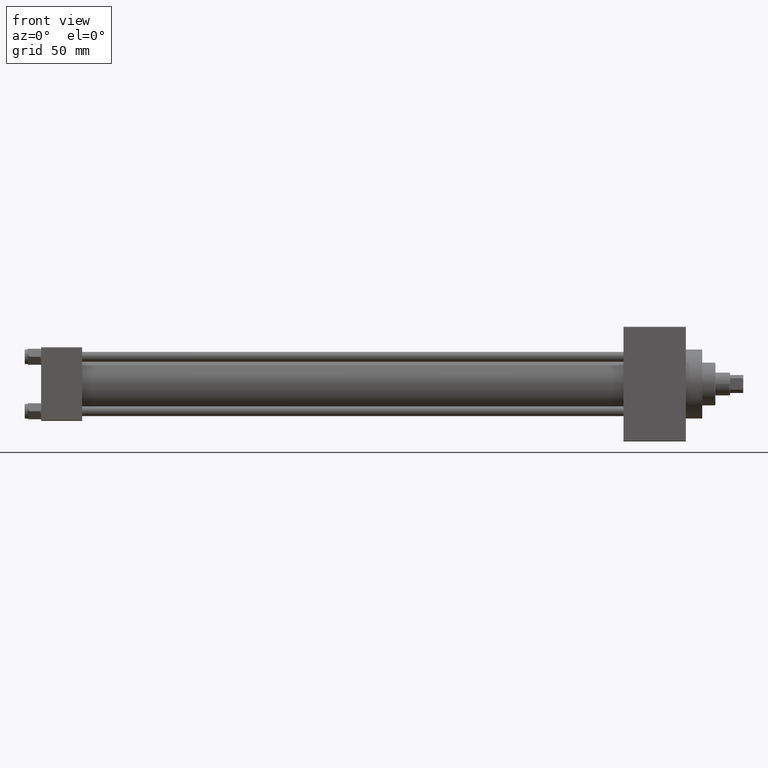
[diagram: clean part render]
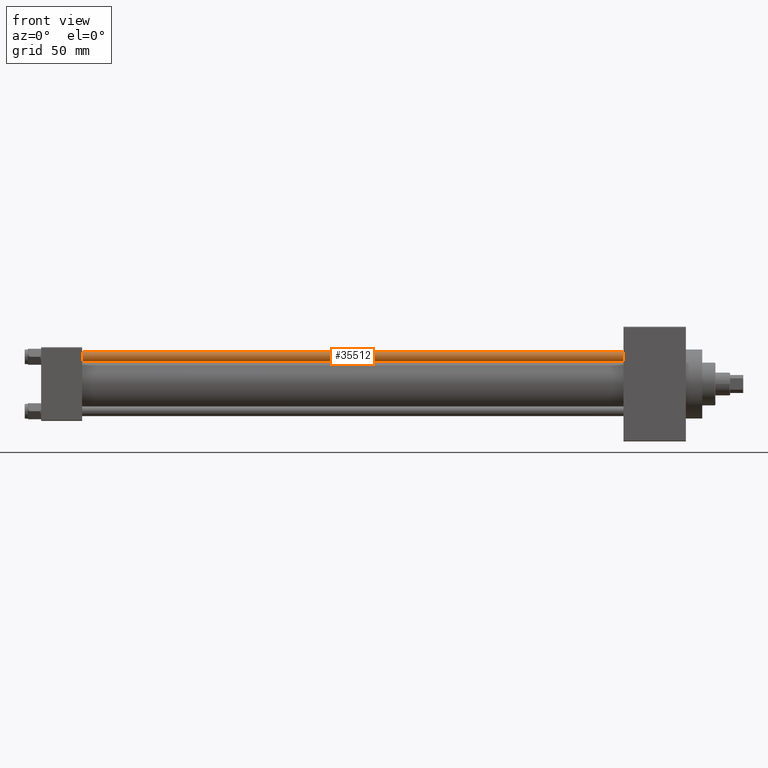
[diagram: same view with one face highlighted and labeled with its STEP entity id]
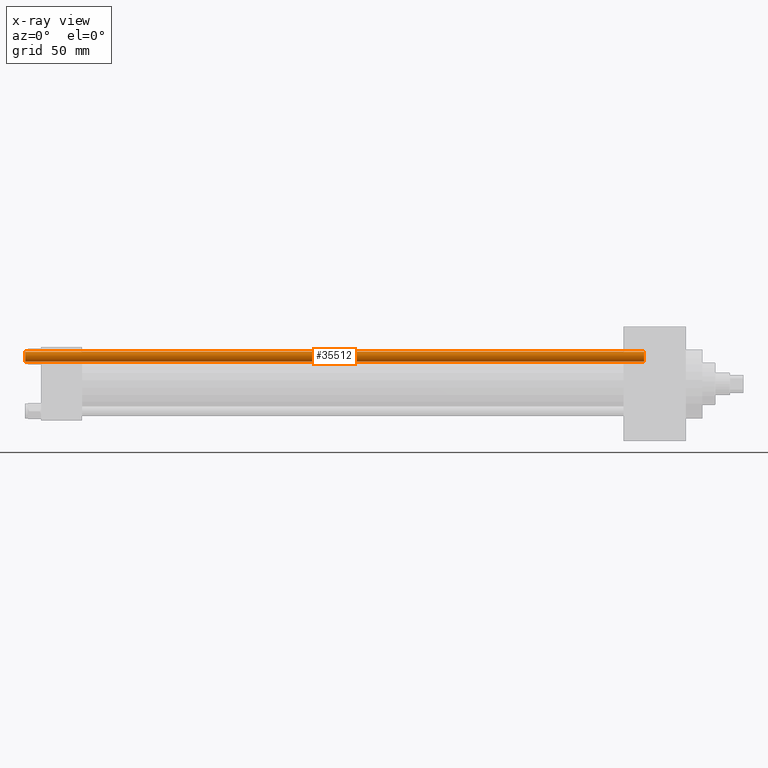
[diagram: x-ray of the same camera — body ghosted, the highlighted face saturated]
A machine part, front view. The second image highlights one B-rep face of the part: STEP entity #35512.
The next image is the same camera in x-ray: the body ghosted, the highlighted face saturated — about 0% of this face is hidden behind the body in this view.
In plain terms, the highlighted cylindrical surface (edge-blend (fillet) strip) has radius 3 mm, axis along (1, 0, 0).
Its self-contained STEP definition (entity closure, byte-faithful):
#872 = ORIENTED_EDGE ( 'NONE', *, *, #19552, .T. ) ;
#1058 = CARTESIAN_POINT ( 'NONE',  ( 3.000000000000000444, 3.673940397442060361E-16, 377.5000000000000000 ) ) ;
#4393 = VERTEX_POINT ( 'NONE', #33997 ) ;
#4960 = CIRCLE ( 'NONE', #15685, 3.000000000000000444 ) ;
#6283 = DIRECTION ( 'NONE',  ( -0.000000000000000000, -0.000000000000000000, -1.000000000000000000 ) ) ;
#6334 = ORIENTED_EDGE ( 'NONE', *, *, #30495, .F. ) ;
#6673 = DIRECTION ( 'NONE',  ( -0.000000000000000000, -0.000000000000000000, -1.000000000000000000 ) ) ;
#7503 = VERTEX_POINT ( 'NONE', #44470 ) ;
#9901 = CARTESIAN_POINT ( 'NONE',  ( 3.000000000000000444, 3.673940397442060361E-16, 378.0000000000000000 ) ) ;
#10515 = EDGE_CURVE ( 'NONE', #7503, #41911, #4960, .T. ) ;
#10836 = LINE ( 'NONE', #9901, #39032 ) ;
#11368 = CARTESIAN_POINT ( 'NONE',  ( 0.000000000000000000, 0.000000000000000000, 0.5000000000000004441 ) ) ;
#15339 = DIRECTION ( 'NONE',  ( 1.000000000000000000, 0.000000000000000000, 0.000000000000000000 ) ) ;
#15685 = AXIS2_PLACEMENT_3D ( 'NONE', #11368, #44874, #25988 ) ;
#17449 = ORIENTED_EDGE ( 'NONE', *, *, #27061, .T. ) ;
#19162 = DIRECTION ( 'NONE',  ( 0.000000000000000000, 0.000000000000000000, -1.000000000000000000 ) ) ;
#19552 = EDGE_CURVE ( 'NONE', #4393, #41877, #39561, .T. ) ;
#21319 = DIRECTION ( 'NONE',  ( -1.000000000000000000, 0.000000000000000000, 0.000000000000000000 ) ) ;
#22718 = LINE ( 'NONE', #41606, #36076 ) ;
#25045 = AXIS2_PLACEMENT_3D ( 'NONE', #45007, #19162, #15339 ) ;
#25133 = CYLINDRICAL_SURFACE ( 'NONE', #42332, 3.000000000000000444 ) ;
#25988 = DIRECTION ( 'NONE',  ( 1.000000000000000000, 0.000000000000000000, 0.000000000000000000 ) ) ;
#27061 = EDGE_CURVE ( 'NONE', #41877, #7503, #10836, .T. ) ;
#27169 = ORIENTED_EDGE ( 'NONE', *, *, #10515, .T. ) ;
#30495 = EDGE_CURVE ( 'NONE', #4393, #41911, #22718, .T. ) ;
#33997 = CARTESIAN_POINT ( 'NONE',  ( -3.000000000000000444, 0.000000000000000000, 377.5000000000000000 ) ) ;
#34134 = CARTESIAN_POINT ( 'NONE',  ( -3.000000000000000444, 0.000000000000000000, 0.5000000000000004441 ) ) ;
#35512 = ADVANCED_FACE ( 'NONE', ( #36838 ), #25133, .T. ) ;
#36076 = VECTOR ( 'NONE', #36837, 1000.000000000000000 ) ;
#36837 = DIRECTION ( 'NONE',  ( -0.000000000000000000, -0.000000000000000000, -1.000000000000000000 ) ) ;
#36838 = FACE_OUTER_BOUND ( 'NONE', #39548, .T. ) ;
#39032 = VECTOR ( 'NONE', #6283, 1000.000000000000000 ) ;
#39495 = CARTESIAN_POINT ( 'NONE',  ( 0.000000000000000000, 0.000000000000000000, 378.0000000000000000 ) ) ;
#39548 = EDGE_LOOP ( 'NONE', ( #872, #17449, #27169, #6334 ) ) ;
#39561 = CIRCLE ( 'NONE', #25045, 3.000000000000000444 ) ;
#41606 = CARTESIAN_POINT ( 'NONE',  ( -3.000000000000000444, 0.000000000000000000, 378.0000000000000000 ) ) ;
#41877 = VERTEX_POINT ( 'NONE', #1058 ) ;
#41911 = VERTEX_POINT ( 'NONE', #34134 ) ;
#42332 = AXIS2_PLACEMENT_3D ( 'NONE', #39495, #6673, #21319 ) ;
#44470 = CARTESIAN_POINT ( 'NONE',  ( 3.000000000000000444, 3.673940397442060361E-16, 0.5000000000000004441 ) ) ;
#44874 = DIRECTION ( 'NONE',  ( -0.000000000000000000, -0.000000000000000000, 1.000000000000000000 ) ) ;
#45007 = CARTESIAN_POINT ( 'NONE',  ( 0.000000000000000000, 0.000000000000000000, 377.5000000000000000 ) ) ;